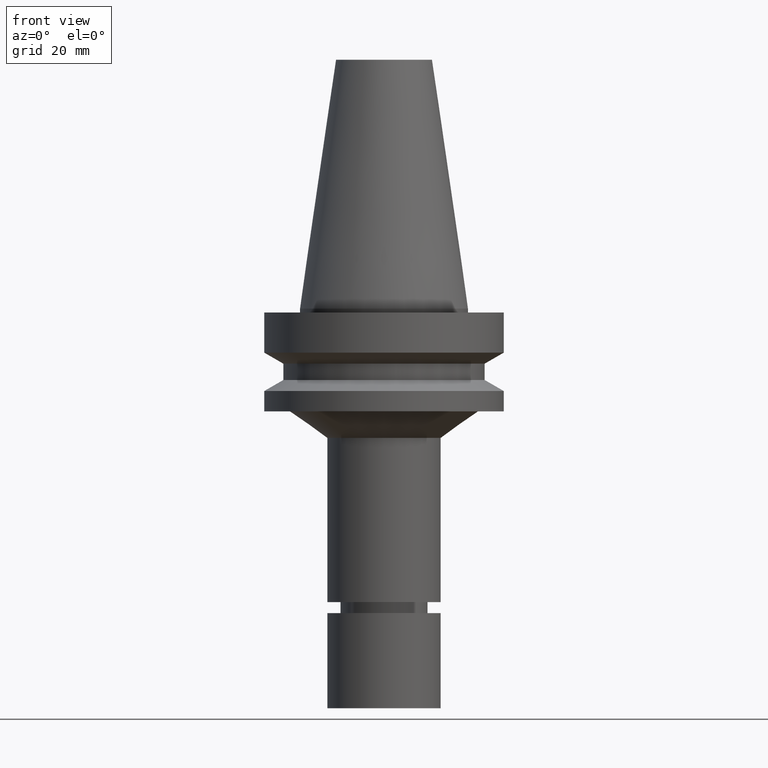
[diagram: clean part render]
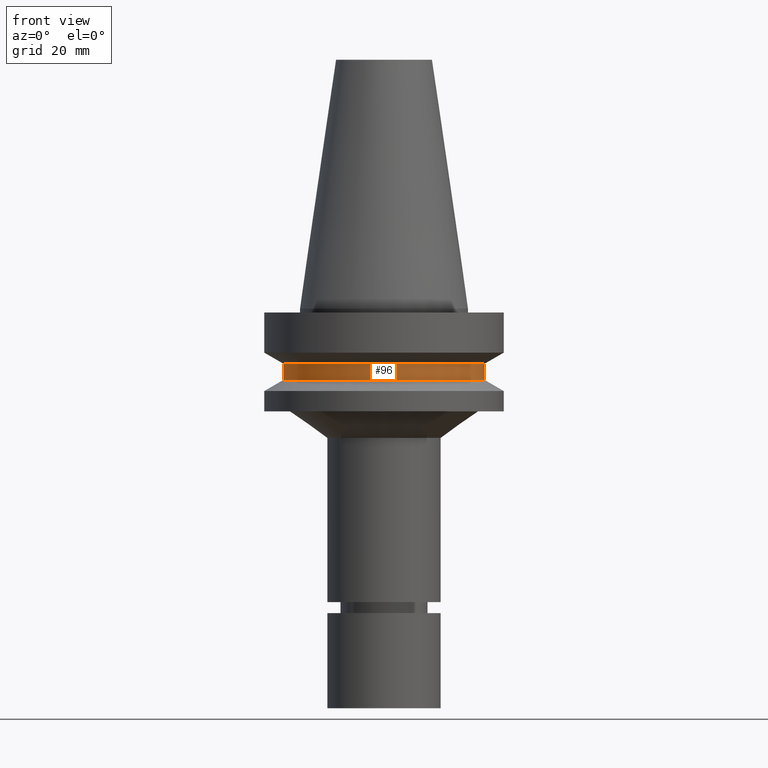
[diagram: same view with one face highlighted and labeled with its STEP entity id]
A machine part, front view. The second image highlights one B-rep face of the part: STEP entity #96.
In plain terms, the highlighted cylindrical surface (bore or boss wall) has radius 26.5 mm, axis along (0, -0, -1).
Its self-contained STEP definition (entity closure, byte-faithful):
#91=EDGE_CURVE('Unnamed[1]',#226,#226,#227,.T.);
#96=ADVANCED_FACE('Unnamed[1]',(#233,#234),#235,.T.);
#115=EDGE_CURVE('Unnamed[1]',#262,#262,#263,.T.);
#226=VERTEX_POINT('',#408);
#227=CIRCLE('',#409,26.4999999999994);
#233=FACE_BOUND('',#417,.T.);
#234=FACE_BOUND('',#418,.T.);
#235=CYLINDRICAL_SURFACE('',#419,26.4999999999997);
#262=VERTEX_POINT('',#453);
#263=CIRCLE('',#454,26.5);
#408=CARTESIAN_POINT('',(8.8494551369045E-016,26.4999999999995,-14.4522569986152));
#409=AXIS2_PLACEMENT_3D('',#609,#610,#611);
#417=EDGE_LOOP('',(#616));
#418=EDGE_LOOP('',(#617));
#419=AXIS2_PLACEMENT_3D('',#618,#619,#620);
#453=CARTESIAN_POINT('',(1.1479681728942E-015,26.5,-18.7477430013855));
#454=AXIS2_PLACEMENT_3D('',#646,#647,#648);
#609=CARTESIAN_POINT('',(8.8494551369045E-016,7.45836488611718E-014,-14.4522569986152));
#610=DIRECTION('',(6.12323399573677E-017,-3.19681415020244E-017,-1.0));
#611=DIRECTION('',(-2.86966862251183E-033,1.0,-3.19681415020244E-017));
#616=ORIENTED_EDGE('',*,*,#115,.F.);
#617=ORIENTED_EDGE('',*,*,#91,.T.);
#618=CARTESIAN_POINT('',(1.01645684329232E-015,7.45149895089935E-014,-16.6000000000004));
#619=DIRECTION('',(6.12323399573677E-017,-3.19681415020243E-017,-1.0));
#620=DIRECTION('',(-2.86966862251183E-033,1.0,-3.19681415020243E-017));
#646=CARTESIAN_POINT('',(1.1479681728942E-015,7.44463301568153E-014,-18.7477430013855));
#647=DIRECTION('',(6.12323399573677E-017,-3.19681415020243E-017,-1.0));
#648=DIRECTION('',(-2.86966862251183E-033,1.0,-3.19681415020243E-017));